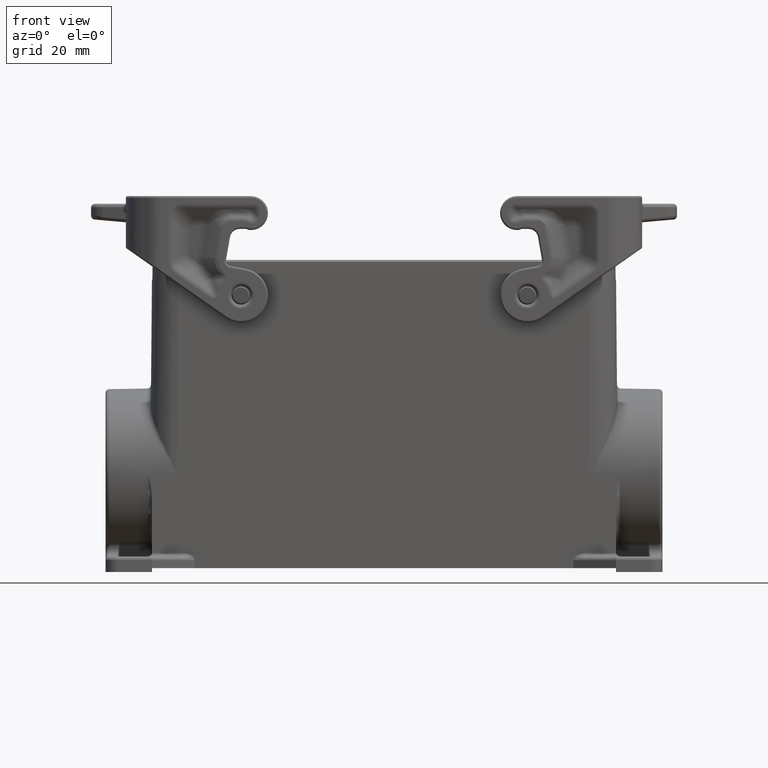
[diagram: clean part render]
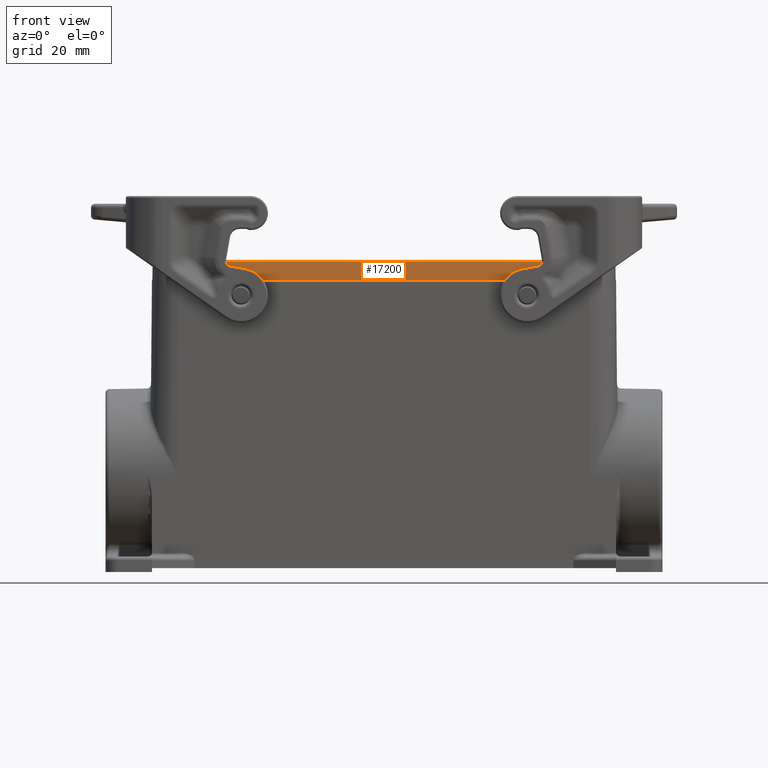
[diagram: same view with one face highlighted and labeled with its STEP entity id]
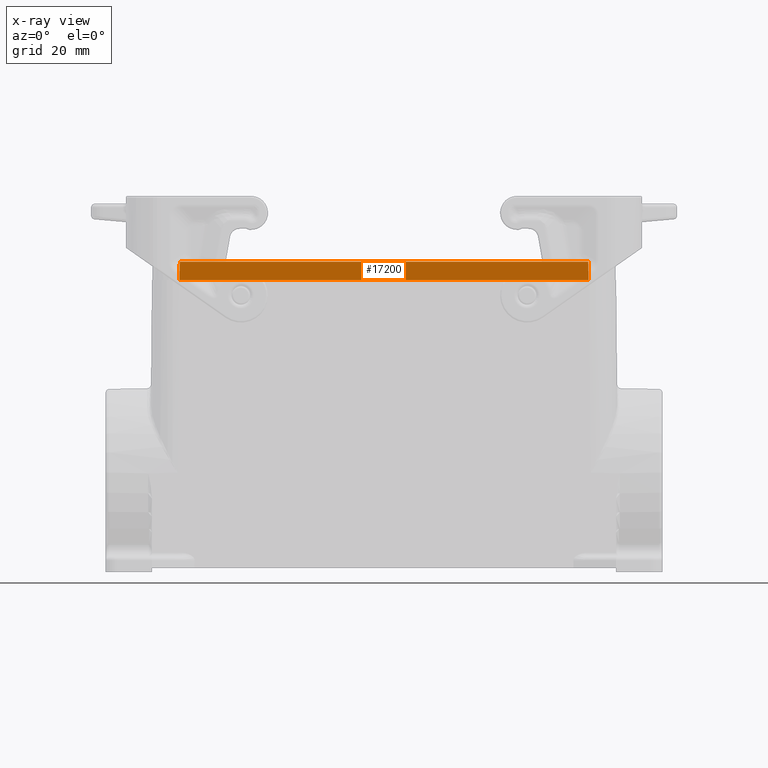
[diagram: x-ray of the same camera — body ghosted, the highlighted face saturated]
A machine part, front view. The second image highlights one B-rep face of the part: STEP entity #17200.
The next image is the same camera in x-ray: the body ghosted, the highlighted face saturated — about 0% of this face is hidden behind the body in this view.
In plain terms, the highlighted planar face has unit normal (-0, 0.9998, -0.0175).
Its self-contained STEP definition (entity closure, byte-faithful):
#620=CARTESIAN_POINT('',(113.219644133905,61.65508,74.5));
#630=VERTEX_POINT('',#620);
#660=CARTESIAN_POINT('',(0.,61.65508,74.5));
#670=DIRECTION('',(1.,3.41061511850621E-17,0.));
#680=VECTOR('',#670,1.);
#690=LINE('',#660,#680);
#700=CARTESIAN_POINT('',(7.4175118660948,61.65508,74.5));
#710=VERTEX_POINT('',#700);
#720=EDGE_CURVE('',#710,#630,#690,.T.);
#12480=CARTESIAN_POINT('',(7.49973022844709,61.5728616376479,
79.2102868245061));
#12490=VERTEX_POINT('',#12480);
#14030=CARTESIAN_POINT('',(7.51041063393416,61.5621812321608,
79.822166845061));
#14040=DIRECTION('',(-0.0174497491606849,0.017449749160683,
-0.999695459881887));
#14050=VECTOR('',#14040,1.);
#14060=LINE('',#14030,#14050);
#14070=EDGE_CURVE('',#12490,#710,#14060,.T.);
#14550=CARTESIAN_POINT('',(54.3273547478425,61.5728616376478,
79.210286824506));
#14560=DIRECTION('',(1.,-9.86385718590308E-16,-1.50216661725708E-15));
#14570=VECTOR('',#14560,1.);
#14580=LINE('',#14550,#14570);
#14590=CARTESIAN_POINT('',(113.137425771513,61.5728616376477,
79.2102868245059));
#14600=VERTEX_POINT('',#14590);
#14610=EDGE_CURVE('',#12490,#14600,#14580,.T.);
#17040=CARTESIAN_POINT('',(13.2685779998999,61.65508,74.4999999999997));
#17050=DIRECTION('',(3.41009566530398E-17,-0.999847695156391,
-0.0174524064372833));
#17060=DIRECTION('',(-1.,4.6518787742059E-18,-2.22044604925031E-15));
#17070=AXIS2_PLACEMENT_3D('',#17040,#17050,#17060);
#17080=PLANE('',#17070);
#17090=ORIENTED_EDGE('',*,*,#14070,.F.);
#17100=ORIENTED_EDGE('',*,*,#720,.F.);
#17110=CARTESIAN_POINT('',(113.126745366066,61.5621812321607,
79.8221668450609));
#17120=DIRECTION('',(0.0174497491606849,0.0174497491606825,
-0.999695459881888));
#17130=VECTOR('',#17120,1.);
#17140=LINE('',#17110,#17130);
#17150=EDGE_CURVE('',#14600,#630,#17140,.T.);
#17160=ORIENTED_EDGE('',*,*,#17150,.T.);
#17170=ORIENTED_EDGE('',*,*,#14610,.T.);
#17180=EDGE_LOOP('',(#17170,#17160,#17100,#17090));
#17190=FACE_OUTER_BOUND('',#17180,.T.);
#17200=ADVANCED_FACE('',(#17190),#17080,.F.);